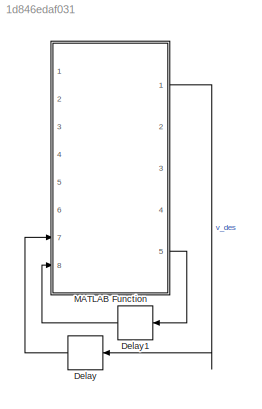
MODEL slx_1d846edaf031
KIND model
CONFIG AbsTol = auto
CONFIG EnableMultiTasking = off
CONFIG FixedStep = auto
CONFIG MaxStep = auto
CONFIG MinStep = auto
CONFIG RelTol = 1e-3
CONFIG SampleTimeConstraint = Unconstrained
CONFIG Solver = VariableStepAuto
CONFIG SolverName = VariableStepAuto
CONFIG StartTime = 0.0
CONFIG StopTime = inf
BLOCK [Delay] Delay
  DelayLength = 1
  InputPortMap = u0
  Ports = [1, 1]
BLOCK [Delay] Delay1
  DelayLength = 1
  InputPortMap = u0
  Ports = [1, 1]
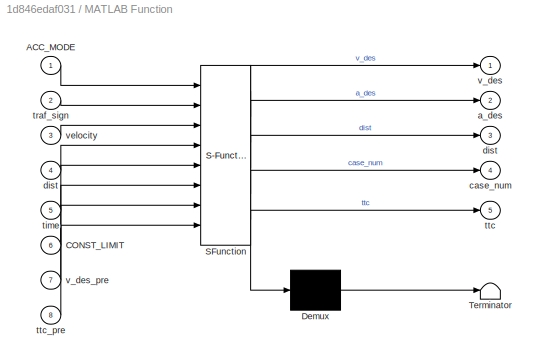
BLOCK [SubSystem] MATLAB Function
  ErrorFcn = Stateflow.Translate.translate
  PermitHierarchicalResolution = ExplicitOnly
  Ports = [8, 5]
  RequestExecContextInheritance = off
  SFBlockType = MATLAB Function
  TreatAsAtomicUnit = on
BLOCK [Demux] MATLAB Function/ Demux 
  Outputs = 1
  Ports = [1, 1]
BLOCK [S-Function] MATLAB Function/ SFunction 
  EnableBusSupport = on
  FunctionName = sf_sfun
  PortCounts = [8 6]
  Ports = [8, 6]
  SFcnIsStateOwnerBlock = off
  SFunctionDeploymentMode = off
  Tag = Stateflow S-Function 5
BLOCK [Terminator] MATLAB Function/ Terminator 
BLOCK [Inport] MATLAB Function/ACC_MODE
  IconDisplay = Port number
BLOCK [Inport] MATLAB Function/CONST_LIMIT
  IconDisplay = Port number
  Port = 6
BLOCK [Outport] MATLAB Function/a_des
  IconDisplay = Port number
  Port = 2
BLOCK [Outport] MATLAB Function/case_num
  IconDisplay = Port number
  Port = 4
BLOCK [Outport] MATLAB Function/dist
  IconDisplay = Port number
  Port = 3
BLOCK [Inport] MATLAB Function/dist 
  IconDisplay = Port number
  Port = 4
BLOCK [Inport] MATLAB Function/time
  IconDisplay = Port number
  Port = 5
BLOCK [Inport] MATLAB Function/traf_sign
  IconDisplay = Port number
  Port = 2
BLOCK [Outport] MATLAB Function/ttc
  IconDisplay = Port number
  Port = 5
BLOCK [Inport] MATLAB Function/ttc_pre
  IconDisplay = Port number
  Port = 8
BLOCK [Outport] MATLAB Function/v_des
  IconDisplay = Port number
BLOCK [Inport] MATLAB Function/v_des_pre
  IconDisplay = Port number
  Port = 7
BLOCK [Inport] MATLAB Function/velocity
  IconDisplay = Port number
  Port = 3
LINE Delay1:1 -> MATLAB Function:8
LINE Delay:1 -> MATLAB Function:7
LINE MATLAB Function:1 -> Delay:1
LINE MATLAB Function:5 -> Delay1:1
CHART MATLAB Function states=1 transitions=1
  STATE_LABEL 'eML_blk_kernel()'
  STATE_LABEL 'SCRIPT:\n\n% clc\n% clear all\n% close all\n% traf_sign = 0;\n% velocity = 30;\n% dist = 100;\n% time = 12;\n% CONST_LIMIT = 40;\n% ACC_MODE = 0;\n\nfunction [v_des,a_des,dist,case_num,ttc] = intesec_cross(ACC_MODE, traf_sign, velocity, dist, time,CONST_LIMIT,v_des_pre,ttc_pre)  \n%% this is a function that provide desired velocity, and distance to traffic light;\n    % input: trafic_sign with green = 0; red = ...<+3208ch>'
